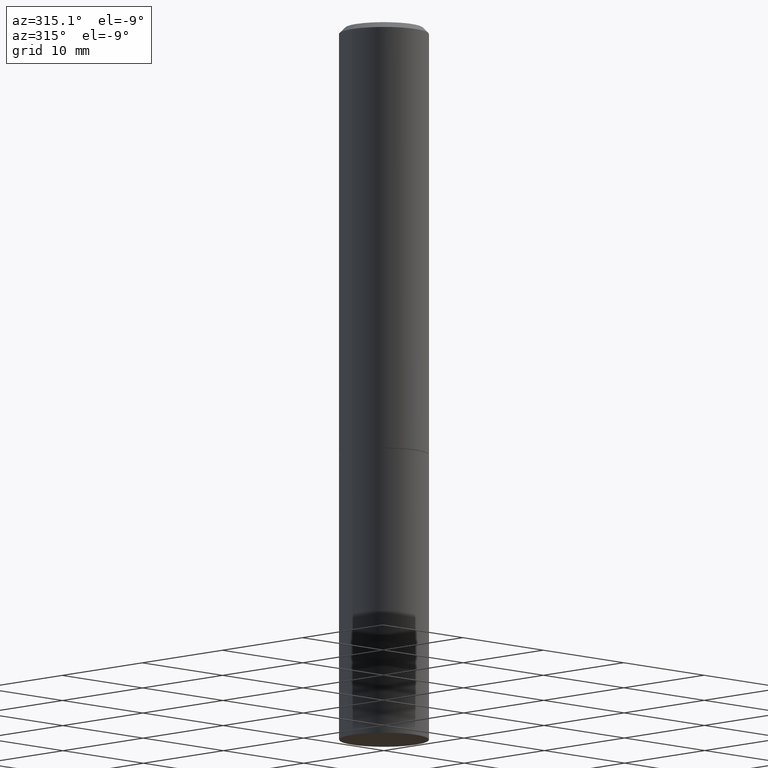
[diagram: clean part render]
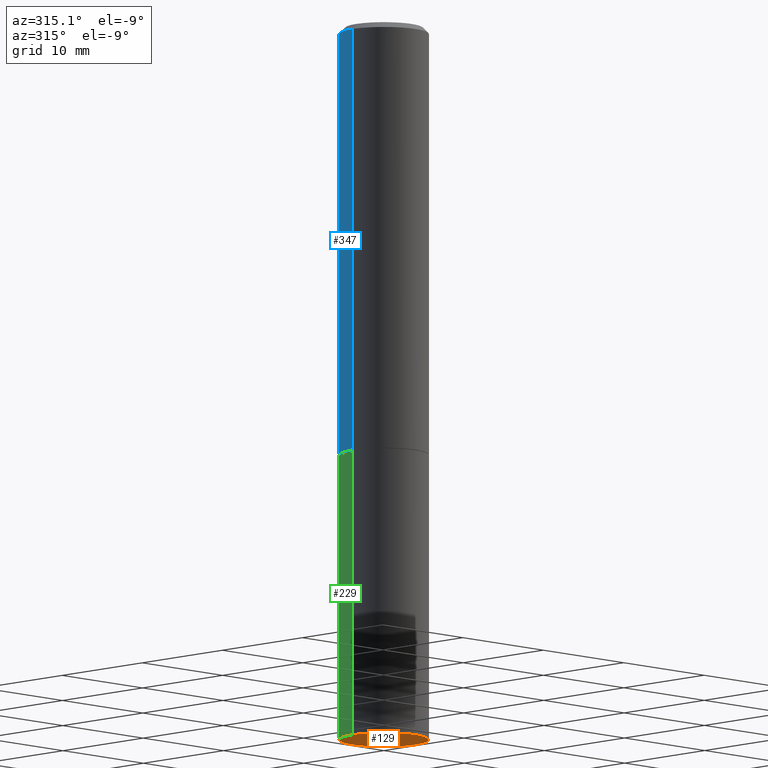
[diagram: same view with three faces highlighted in distinct colors, each labeled with its STEP entity id]
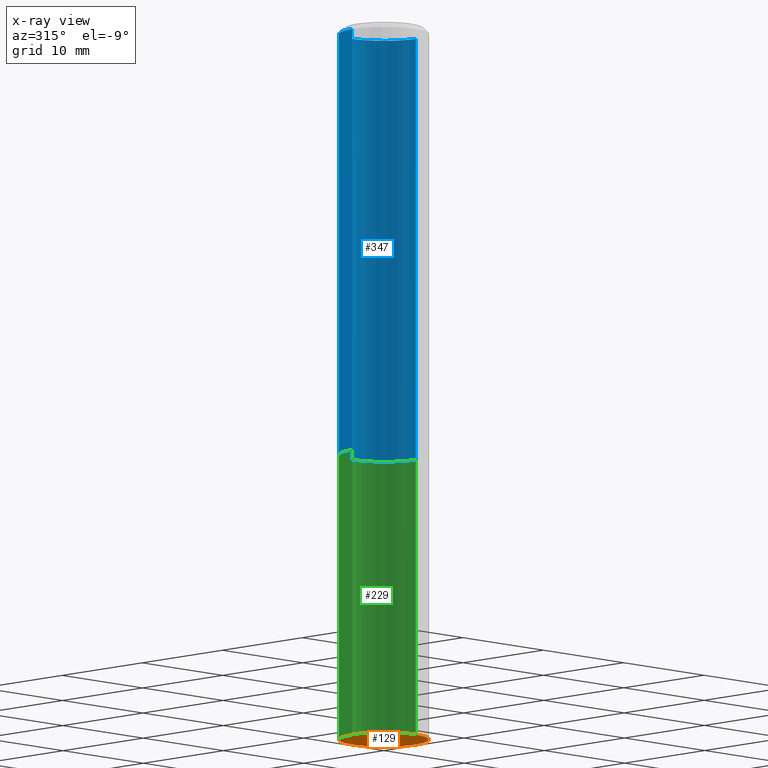
[diagram: x-ray of the same camera — body ghosted, the three highlighted faces saturated]
A machine part, auxiliary view with three faces highlighted in distinct colors.
The next image is the same camera in x-ray (body ghosted, the three faces saturated) — at least one of them is partly hidden behind the body in this view.
Their STEP definitions:

[orange] entity #129 — the highlighted planar face has unit normal (0, -0, -1).
#6 = DIRECTION ( 'NONE',  ( 1.000000000000000000, -6.982962677686269077E-15, 0.000000000000000000 ) ) ;
#12 = PLANE ( 'NONE',  #194 ) ;
#15 = CARTESIAN_POINT ( 'NONE',  ( 1.091087918388540310E-15, 0.1562499999999912570, -2.500000000000000444 ) ) ;
#18 = CIRCLE ( 'NONE', #234, 0.1562500000000000000 ) ;
#29 = ORIENTED_EDGE ( 'NONE', *, *, #55, .F. ) ;
#37 = DIRECTION ( 'NONE',  ( -1.000000000000000000, 6.982962677686265922E-15, -4.876176775795935793E-29 ) ) ;
#55 = EDGE_CURVE ( 'NONE', #364, #337, #244, .T. ) ;
#104 = DIRECTION ( 'NONE',  ( -2.445468806185136597E-29, 3.491481338843145583E-15, 1.000000000000000000 ) ) ;
#129 = ADVANCED_FACE ( 'NONE', ( #311 ), #12, .T. ) ;
#132 = DIRECTION ( 'NONE',  ( 2.438088387897960049E-29, -3.491481338843145188E-15, -1.000000000000000000 ) ) ;
#139 = AXIS2_PLACEMENT_3D ( 'NONE', #344, #146, #6 ) ;
#143 = ORIENTED_EDGE ( 'NONE', *, *, #291, .F. ) ;
#146 = DIRECTION ( 'NONE',  ( -2.445468806185136597E-29, 3.491481338843145583E-15, 1.000000000000000000 ) ) ;
#162 = DIRECTION ( 'NONE',  ( 1.000000000000000000, -6.982962677686269077E-15, 0.000000000000000000 ) ) ;
#186 = CARTESIAN_POINT ( 'NONE',  ( 6.113672015462842613E-29, -8.728703347107864943E-15, -2.500000000000000000 ) ) ;
#194 = AXIS2_PLACEMENT_3D ( 'NONE', #15, #132, #37 ) ;
#213 = CARTESIAN_POINT ( 'NONE',  ( 0.1562500000000000000, -9.819791265496344905E-15, -2.500000000000000000 ) ) ;
#224 = EDGE_LOOP ( 'NONE', ( #143, #29 ) ) ;
#234 = AXIS2_PLACEMENT_3D ( 'NONE', #186, #104, #162 ) ;
#244 = CIRCLE ( 'NONE', #139, 0.1562500000000000000 ) ;
#291 = EDGE_CURVE ( 'NONE', #337, #364, #18, .T. ) ;
#311 = FACE_OUTER_BOUND ( 'NONE', #224, .T. ) ;
#337 = VERTEX_POINT ( 'NONE', #213 ) ;
#344 = CARTESIAN_POINT ( 'NONE',  ( 6.113672015462842613E-29, -8.728703347107864943E-15, -2.500000000000000000 ) ) ;
#361 = CARTESIAN_POINT ( 'NONE',  ( -0.1562500000000000000, -5.872739653061135414E-15, -2.500000000000000000 ) ) ;
#364 = VERTEX_POINT ( 'NONE', #361 ) ;

[blue] entity #347 — the highlighted cylindrical surface (partial cylindrical patch) has radius 3.9687 mm, axis along (-0, 0, 1).
#17 = CYLINDRICAL_SURFACE ( 'NONE', #240, 0.1562499999999999445 ) ;
#20 = DIRECTION ( 'NONE',  ( -2.445468806185136597E-29, 3.491481338843145583E-15, 1.000000000000000000 ) ) ;
#46 = EDGE_CURVE ( 'NONE', #267, #333, #210, .T. ) ;
#48 = DIRECTION ( 'NONE',  ( -2.445468806185136877E-29, 3.491481338843145188E-15, 1.000000000000000000 ) ) ;
#49 = DIRECTION ( 'NONE',  ( 1.000000000000000000, -6.982962677686269077E-15, 0.000000000000000000 ) ) ;
#61 = ORIENTED_EDGE ( 'NONE', *, *, #46, .T. ) ;
#75 = DIRECTION ( 'NONE',  ( -2.445468806185136597E-29, 3.491481338843145583E-15, 1.000000000000000000 ) ) ;
#78 = CARTESIAN_POINT ( 'NONE',  ( 0.1562499999999999445, -1.091087918388478779E-15, 7.619026212181146173E-30 ) ) ;
#96 = CIRCLE ( 'NONE', #360, 0.1562500000000000000 ) ;
#107 = CARTESIAN_POINT ( 'NONE',  ( 0.1562500000000000000, -6.324818445314355132E-15, -1.499000000000000110 ) ) ;
#114 = ORIENTED_EDGE ( 'NONE', *, *, #295, .T. ) ;
#118 = ORIENTED_EDGE ( 'NONE', *, *, #252, .F. ) ;
#136 = CARTESIAN_POINT ( 'NONE',  ( 0.000000000000000000, 0.000000000000000000, 0.000000000000000000 ) ) ;
#137 = FACE_OUTER_BOUND ( 'NONE', #302, .T. ) ;
#170 = DIRECTION ( 'NONE',  ( 1.000000000000000000, -6.982962677686266711E-15, 4.876176775795935232E-29 ) ) ;
#171 = VERTEX_POINT ( 'NONE', #342 ) ;
#185 = DIRECTION ( 'NONE',  ( 1.000000000000000000, -6.982962677686265133E-15, 0.000000000000000000 ) ) ;
#188 = VECTOR ( 'NONE', #289, 39.37007874015748143 ) ;
#192 = CARTESIAN_POINT ( 'NONE',  ( -0.1562500000000000000, -1.541557052226212102E-15, -1.499000000000000110 ) ) ;
#210 = LINE ( 'NONE', #319, #188 ) ;
#221 = ORIENTED_EDGE ( 'NONE', *, *, #330, .F. ) ;
#240 = AXIS2_PLACEMENT_3D ( 'NONE', #136, #241, #170 ) ;
#241 = DIRECTION ( 'NONE',  ( -2.445468806185136597E-29, 3.491481338843145583E-15, 1.000000000000000000 ) ) ;
#251 = VERTEX_POINT ( 'NONE', #107 ) ;
#252 = EDGE_CURVE ( 'NONE', #251, #171, #331, .T. ) ;
#266 = CARTESIAN_POINT ( 'NONE',  ( -0.1562499999999998335, 1.021258291611615086E-15, -0.02000000000000003511 ) ) ;
#267 = VERTEX_POINT ( 'NONE', #192 ) ;
#268 = CARTESIAN_POINT ( 'NONE',  ( 4.890937612370281041E-31, -6.982962677686302702E-17, -0.02000000000000003511 ) ) ;
#273 = CARTESIAN_POINT ( 'NONE',  ( 3.665757740471519853E-29, -5.233730526925875958E-15, -1.499000000000000110 ) ) ;
#275 = CIRCLE ( 'NONE', #314, 0.1562499999999998335 ) ;
#289 = DIRECTION ( 'NONE',  ( -2.445468806185136877E-29, 3.491481338843145188E-15, 1.000000000000000000 ) ) ;
#295 = EDGE_CURVE ( 'NONE', #251, #267, #96, .T. ) ;
#302 = EDGE_LOOP ( 'NONE', ( #114, #61, #221, #118 ) ) ;
#308 = VECTOR ( 'NONE', #48, 39.37007874015748143 ) ;
#314 = AXIS2_PLACEMENT_3D ( 'NONE', #268, #75, #185 ) ;
#319 = CARTESIAN_POINT ( 'NONE',  ( -0.1562499999999999445, 1.110223024625156146E-15, -7.685836078523286956E-30 ) ) ;
#330 = EDGE_CURVE ( 'NONE', #171, #333, #275, .T. ) ;
#331 = LINE ( 'NONE', #78, #308 ) ;
#333 = VERTEX_POINT ( 'NONE', #266 ) ;
#342 = CARTESIAN_POINT ( 'NONE',  ( 0.1562499999999998335, -1.141782438928663724E-15, -0.02000000000000003511 ) ) ;
#347 = ADVANCED_FACE ( 'NONE', ( #137 ), #17, .T. ) ;
#360 = AXIS2_PLACEMENT_3D ( 'NONE', #273, #20, #49 ) ;

[green] entity #229 — the highlighted cylindrical surface (partial cylindrical patch) has radius 3.9688 mm, axis along (-0, 0, 1).
#11 = AXIS2_PLACEMENT_3D ( 'NONE', #133, #54, #356 ) ;
#16 = LINE ( 'NONE', #134, #274 ) ;
#18 = CIRCLE ( 'NONE', #234, 0.1562500000000000000 ) ;
#27 = VERTEX_POINT ( 'NONE', #154 ) ;
#33 = EDGE_CURVE ( 'NONE', #337, #27, #182, .T. ) ;
#54 = DIRECTION ( 'NONE',  ( -2.445468806185136597E-29, 3.491481338843145583E-15, 1.000000000000000000 ) ) ;
#64 = VERTEX_POINT ( 'NONE', #313 ) ;
#86 = EDGE_LOOP ( 'NONE', ( #324, #106, #278, #363 ) ) ;
#104 = DIRECTION ( 'NONE',  ( -2.445468806185136597E-29, 3.491481338843145583E-15, 1.000000000000000000 ) ) ;
#106 = ORIENTED_EDGE ( 'NONE', *, *, #334, .T. ) ;
#111 = CARTESIAN_POINT ( 'NONE',  ( 0.000000000000000000, 0.000000000000000000, 0.000000000000000000 ) ) ;
#133 = CARTESIAN_POINT ( 'NONE',  ( 3.668203209277704895E-29, -5.237222008264718177E-15, -1.500000000000000222 ) ) ;
#134 = CARTESIAN_POINT ( 'NONE',  ( -0.1562500000000000000, 1.110223024625156540E-15, -7.685836078523291160E-30 ) ) ;
#148 = CARTESIAN_POINT ( 'NONE',  ( 0.1562500000000000000, -1.091087918388479174E-15, 7.619026212181150377E-30 ) ) ;
#154 = CARTESIAN_POINT ( 'NONE',  ( 0.1562500000000000000, -6.328309926653198139E-15, -1.500000000000000222 ) ) ;
#160 = FACE_OUTER_BOUND ( 'NONE', #86, .T. ) ;
#162 = DIRECTION ( 'NONE',  ( 1.000000000000000000, -6.982962677686269077E-15, 0.000000000000000000 ) ) ;
#168 = CIRCLE ( 'NONE', #11, 0.1562500000000000000 ) ;
#179 = DIRECTION ( 'NONE',  ( -2.445468806185136877E-29, 3.491481338843145188E-15, 1.000000000000000000 ) ) ;
#182 = LINE ( 'NONE', #148, #354 ) ;
#186 = CARTESIAN_POINT ( 'NONE',  ( 6.113672015462842613E-29, -8.728703347107864943E-15, -2.500000000000000000 ) ) ;
#191 = DIRECTION ( 'NONE',  ( 1.000000000000000000, -6.982962677686266711E-15, 4.876176775795936353E-29 ) ) ;
#209 = EDGE_CURVE ( 'NONE', #27, #64, #168, .T. ) ;
#213 = CARTESIAN_POINT ( 'NONE',  ( 0.1562500000000000000, -9.819791265496344905E-15, -2.500000000000000000 ) ) ;
#215 = CYLINDRICAL_SURFACE ( 'NONE', #216, 0.1562500000000000000 ) ;
#216 = AXIS2_PLACEMENT_3D ( 'NONE', #111, #242, #191 ) ;
#229 = ADVANCED_FACE ( 'NONE', ( #160 ), #215, .T. ) ;
#234 = AXIS2_PLACEMENT_3D ( 'NONE', #186, #104, #162 ) ;
#239 = DIRECTION ( 'NONE',  ( -2.445468806185136877E-29, 3.491481338843145188E-15, 1.000000000000000000 ) ) ;
#242 = DIRECTION ( 'NONE',  ( -2.445468806185136597E-29, 3.491481338843145583E-15, 1.000000000000000000 ) ) ;
#274 = VECTOR ( 'NONE', #239, 39.37007874015748143 ) ;
#278 = ORIENTED_EDGE ( 'NONE', *, *, #209, .F. ) ;
#291 = EDGE_CURVE ( 'NONE', #337, #364, #18, .T. ) ;
#313 = CARTESIAN_POINT ( 'NONE',  ( -0.1562500000000000000, -5.872739653061135414E-15, -1.500000000000000222 ) ) ;
#324 = ORIENTED_EDGE ( 'NONE', *, *, #291, .T. ) ;
#334 = EDGE_CURVE ( 'NONE', #364, #64, #16, .T. ) ;
#337 = VERTEX_POINT ( 'NONE', #213 ) ;
#354 = VECTOR ( 'NONE', #179, 39.37007874015748143 ) ;
#356 = DIRECTION ( 'NONE',  ( 1.000000000000000000, -6.982962677686269077E-15, 0.000000000000000000 ) ) ;
#361 = CARTESIAN_POINT ( 'NONE',  ( -0.1562500000000000000, -5.872739653061135414E-15, -2.500000000000000000 ) ) ;
#363 = ORIENTED_EDGE ( 'NONE', *, *, #33, .F. ) ;
#364 = VERTEX_POINT ( 'NONE', #361 ) ;